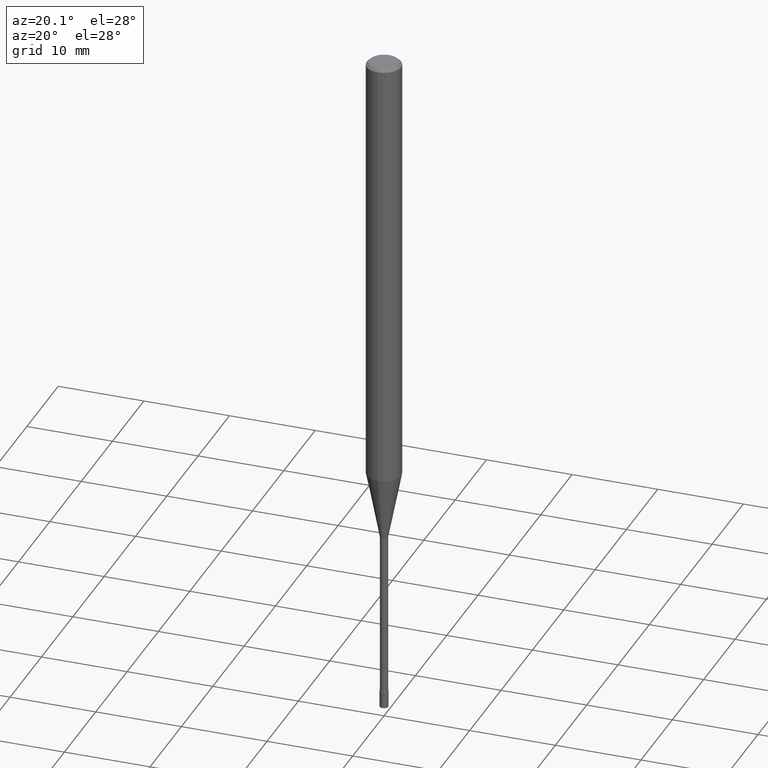
[diagram: clean part render]
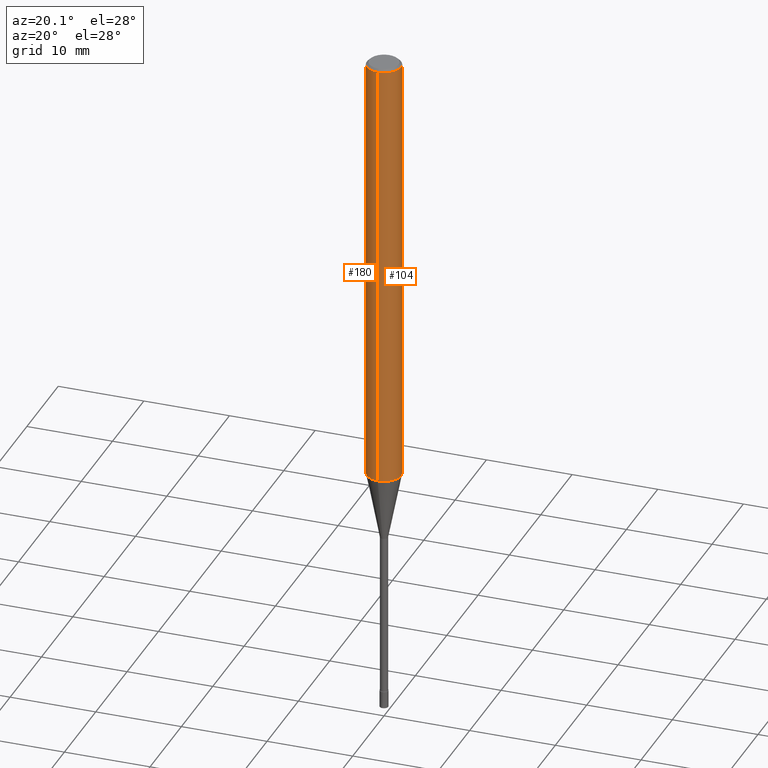
[diagram: same view with one multi-face feature highlighted, each face labeled with its STEP entity id]
A machine part, auxiliary view. The highlighted faces form ONE feature: a constant-radius fillet chain: 2 tangent blend faces with common blend radius 2 mm. The faces share edges in the B-rep.
Their STEP definitions:
[1] entity #104 (Cylinder):
#98=EDGE_CURVE('',#102,#164,#235,.T.);
#102=VERTEX_POINT('',#239);
#104=ADVANCED_FACE('',(#241),#242,.T.);
#124=EDGE_CURVE('',#164,#138,#264,.T.);
#136=EDGE_CURVE('',#182,#138,#277,.T.);
#138=VERTEX_POINT('',#279);
#164=VERTEX_POINT('',#308);
#182=VERTEX_POINT('',#331);
#196=EDGE_CURVE('',#182,#102,#345,.T.);
#235=CIRCLE('',#383,2.0);
#239=CARTESIAN_POINT('',(0.0,2.0,-51.026));
#241=FACE_OUTER_BOUND('',#389,.T.);
#242=CYLINDRICAL_SURFACE('',#390,2.0);
#264=LINE('',#420,#421);
#277=CIRCLE('',#439,2.0);
#279=CARTESIAN_POINT('',(2.44921270764475E-016,-2.0,-0.299999999999997));
#308=CARTESIAN_POINT('',(2.44921270764475E-016,-2.0,-51.026));
#331=CARTESIAN_POINT('',(0.0,2.0,-0.299999999999997));
#345=LINE('',#522,#523);
#383=AXIS2_PLACEMENT_3D('',#543,#544,#545);
#389=EDGE_LOOP('',(#547,#548,#549,#550));
#390=AXIS2_PLACEMENT_3D('',#551,#552,#553);
#420=CARTESIAN_POINT('',(2.44921270764475E-016,-2.0,-25.663));
#421=VECTOR('',#578,1.0);
#439=AXIS2_PLACEMENT_3D('',#592,#593,#594);
#522=CARTESIAN_POINT('',(-2.44921270764475E-016,2.0,-25.663));
#523=VECTOR('',#686,1.0);
#543=CARTESIAN_POINT('',(0.0,0.0,-51.026));
#544=DIRECTION('',(0.0,0.0,-1.0));
#545=DIRECTION('',(0.0,1.0,0.0));
#547=ORIENTED_EDGE('',*,*,#196,.F.);
#548=ORIENTED_EDGE('',*,*,#136,.T.);
#549=ORIENTED_EDGE('',*,*,#124,.F.);
#550=ORIENTED_EDGE('',*,*,#98,.F.);
#551=CARTESIAN_POINT('',(0.0,0.0,-25.663));
#552=DIRECTION('',(-0.0,-0.0,1.0));
#553=DIRECTION('',(0.0,1.0,0.0));
#578=DIRECTION('',(-0.0,-0.0,1.0));
#592=CARTESIAN_POINT('',(0.0,0.0,-0.299999999999997));
#593=DIRECTION('',(0.0,0.0,-1.0));
#594=DIRECTION('',(0.0,1.0,0.0));
#686=DIRECTION('',(0.0,0.0,-1.0));
[2] entity #180 (Cylinder):
#102=VERTEX_POINT('',#239);
#124=EDGE_CURVE('',#164,#138,#264,.T.);
#130=EDGE_CURVE('',#164,#102,#270,.T.);
#138=VERTEX_POINT('',#279);
#148=EDGE_CURVE('',#138,#182,#291,.T.);
#164=VERTEX_POINT('',#308);
#180=ADVANCED_FACE('',(#328),#329,.T.);
#182=VERTEX_POINT('',#331);
#196=EDGE_CURVE('',#182,#102,#345,.T.);
#239=CARTESIAN_POINT('',(0.0,2.0,-51.026));
#264=LINE('',#420,#421);
#270=CIRCLE('',#430,2.0);
#279=CARTESIAN_POINT('',(2.44921270764475E-016,-2.0,-0.299999999999997));
#291=CIRCLE('',#455,2.0);
#308=CARTESIAN_POINT('',(2.44921270764475E-016,-2.0,-51.026));
#328=FACE_OUTER_BOUND('',#500,.T.);
#329=CYLINDRICAL_SURFACE('',#501,2.0);
#331=CARTESIAN_POINT('',(0.0,2.0,-0.299999999999997));
#345=LINE('',#522,#523);
#420=CARTESIAN_POINT('',(2.44921270764475E-016,-2.0,-25.663));
#421=VECTOR('',#578,1.0);
#430=AXIS2_PLACEMENT_3D('',#580,#581,#582);
#455=AXIS2_PLACEMENT_3D('',#612,#613,#614);
#500=EDGE_LOOP('',(#668,#669,#670,#671));
#501=AXIS2_PLACEMENT_3D('',#672,#673,#674);
#522=CARTESIAN_POINT('',(-2.44921270764475E-016,2.0,-25.663));
#523=VECTOR('',#686,1.0);
#578=DIRECTION('',(-0.0,-0.0,1.0));
#580=CARTESIAN_POINT('',(0.0,0.0,-51.026));
#581=DIRECTION('',(0.0,0.0,-1.0));
#582=DIRECTION('',(0.0,1.0,0.0));
#612=CARTESIAN_POINT('',(0.0,0.0,-0.299999999999997));
#613=DIRECTION('',(0.0,0.0,-1.0));
#614=DIRECTION('',(0.0,1.0,0.0));
#668=ORIENTED_EDGE('',*,*,#196,.T.);
#669=ORIENTED_EDGE('',*,*,#130,.F.);
#670=ORIENTED_EDGE('',*,*,#124,.T.);
#671=ORIENTED_EDGE('',*,*,#148,.T.);
#672=CARTESIAN_POINT('',(0.0,0.0,-25.663));
#673=DIRECTION('',(-0.0,-0.0,1.0));
#674=DIRECTION('',(0.0,1.0,0.0));
#686=DIRECTION('',(0.0,0.0,-1.0));